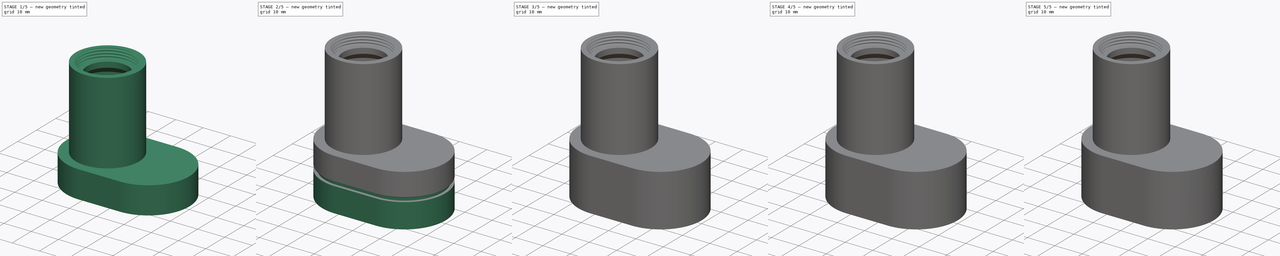
[diagram: build sequence overview — one tinted view per stage of 5, left to right]
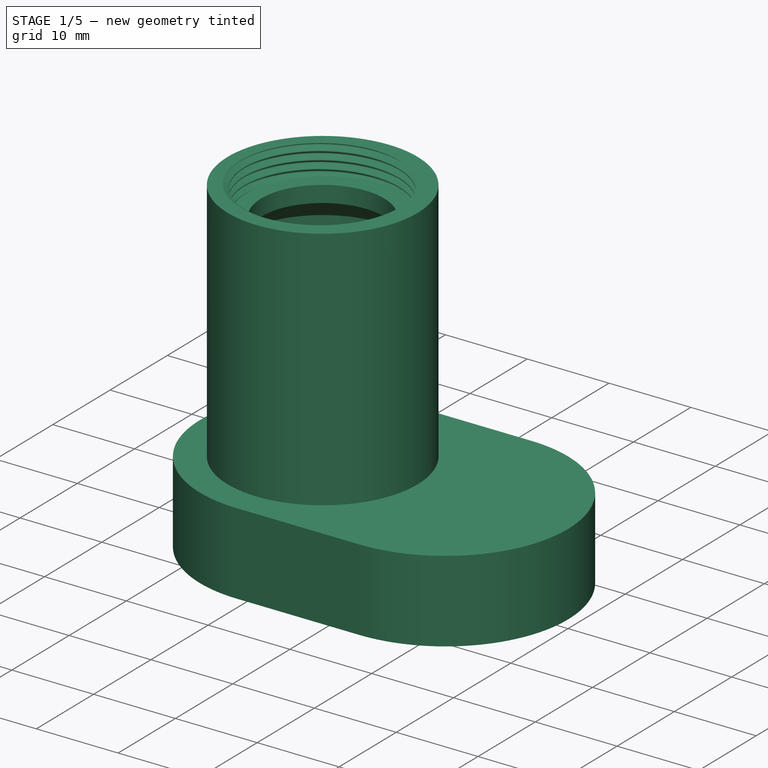
[diagram: stage 1 of 5 — iso view after this stage's code; geometry added in this stage tinted green]
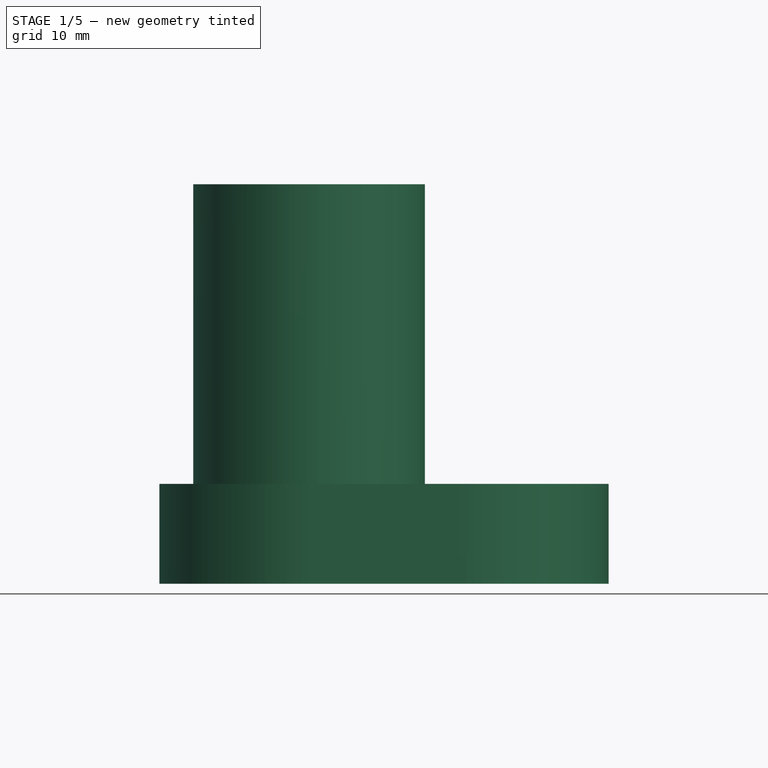
[diagram: stage 1 of 5 — front view after this stage's code; geometry added in this stage tinted green]
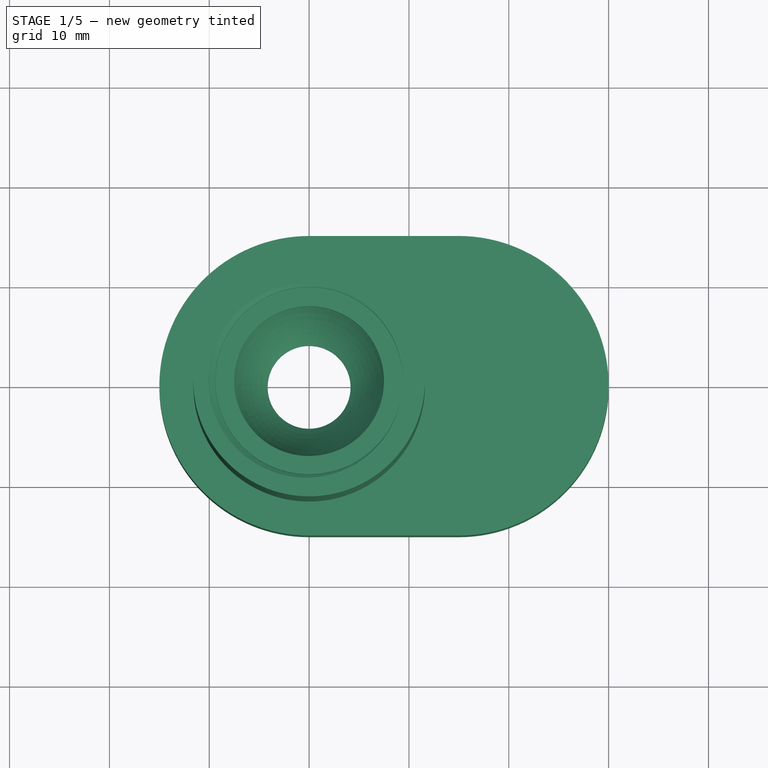
[diagram: stage 1 of 5 — top view after this stage's code; geometry added in this stage tinted green]
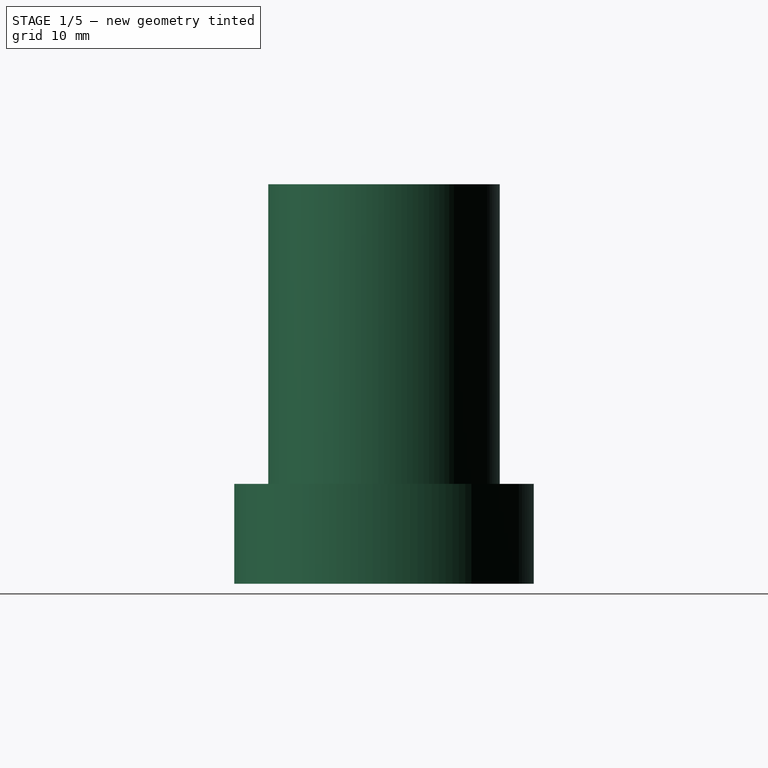
[diagram: stage 1 of 5 — right view after this stage's code; geometry added in this stage tinted green]
FCSTD DOCUMENT  (FreeCAD 1.0R39319 (Git))
Label: tubelight
License: All rights reserved
LicenseURL: https://en.wikipedia.org/wiki/All_rights_reserved
objects: Sketcher::SketchObject×18, PartDesign::Pocket×6, PartDesign::Pad×4, PartDesign::Revolution×3, PartDesign::Body×3, PartDesign::SubtractiveHelix×2, PartDesign::AdditivePipe×1, PartDesign::Groove×1, PartDesign::Mirrored×1, Spreadsheet::Sheet×1, PartDesign::SubtractivePipe×1
note: 95 computed .brp shape members not serialized (recipe doc carries the construction recipe); baked Part::Feature solids carry a one-line shape summary decoded from their .brp

FEATURE [Sketcher::SketchObject] Sketch005  label="gew"
  ArcFitTolerance = 1e-06
  AttachmentSupport = -> [XZ_Plane]
  FullyConstrained = true
  MakeInternals = false
  MapMode = 5
  Placement = pos=(0,0,0) rot=(1,0,0;1.5708rad)
  expr: Constraints[10] = <<tab>>.H_tube
  sketch-geometry (8):
    g0: LineSegment StartX=9.43397 StartY=40.9084 StartZ=0 EndX=10 EndY=40.5816 EndZ=0
    g1: ArcOfCircle CenterX=9.95 CenterY=40.495 CenterZ=0 NormalX=0 NormalY=0 NormalZ=1 AngleXU=0 Radius=0.1 StartAngle=5.23599 EndAngle=7.33038
    g2: LineSegment StartX=10 StartY=40.4084 StartZ=0 EndX=9.43397 EndY=40.0816 EndZ=0
    g3: ArcOfCircle CenterX=9.48397 CenterY=39.995 CenterZ=0 NormalX=0 NormalY=0 NormalZ=1 AngleXU=0 Radius=0.1 StartAngle=2.0944 EndAngle=3.09157
    g4: ArcOfCircle CenterX=9.48397 CenterY=40.995 CenterZ=0 NormalX=0 NormalY=0 NormalZ=1 AngleXU=0 Radius=0.1 StartAngle=3.19161 EndAngle=4.18879
    g5: LineSegment StartX=9.3841 StartY=40 StartZ=0 EndX=9.3841 EndY=40.99 EndZ=0
    g6: GeomPoint X=10.05 Y=40.495 Z=0
    g7: GeomPoint X=9.3841 Y=40.495 Z=0
  constraints (21):
    c: Tangent(g0,g1) = 1.5708
    c: Tangent(g1,g2) = 1.5708
    c: Radius(g1) = 0.1
    c: Equal(g0,g2)
    c: Equal(g4,g3)
    c: Equal(g3,g1)
    c: Tangent(g0,g4) = -1.5708
    c: Tangent(g2,g3) = -1.5708
    c: Angle(g0,g2) = 1.0472
    c: DistanceY(g5,g5) = 0.99
    c: DistanceY(g3) = 40
    c: PointOnObject(g6,g1)
    c: Horizontal(g6,g1)
    c: DistanceX(g6) = 10.05
    c: DistanceX(g4) = 9.3841
    c: Coincident(g4,g5)
    c: Coincident(g3,g5)
    c: Vertical(g5)
    c: DistanceY(g3,g4) = 1
    c: Symmetric(g5,g5,g7)
    c: Horizontal(g7,g1)
FEATURE [Sketcher::SketchObject] Sketch006  label="fill"
  ArcFitTolerance = 1e-06
  AttachmentSupport = -> [XZ_Plane]
  FullyConstrained = true
  MakeInternals = false
  MapMode = 5
  Placement = pos=(0,0,0) rot=(1,0,0;1.5708rad)
  expr: Constraints[8] = <<tab>>.H_tube - 3.5
  sketch-geometry (4):
    g0: LineSegment StartX=7.5 StartY=36.5 StartZ=0 EndX=10.5 EndY=36.5 EndZ=0
    g1: LineSegment StartX=10.5 StartY=36.5 StartZ=0 EndX=10.5 EndY=31.5 EndZ=0
    g2: LineSegment StartX=10.5 StartY=31.5 StartZ=0 EndX=7.5 EndY=34.5 EndZ=0
    g3: LineSegment StartX=7.5 StartY=34.5 StartZ=0 EndX=7.5 EndY=36.5 EndZ=0
  constraints (12):
    c: Horizontal(g0)
    c: Coincident(g0,g1)
    c: Vertical(g1)
    c: Coincident(g1,g2)
    c: Coincident(g2,g3)
    c: Coincident(g3,g0)
    c: Vertical(g3)
    c: DistanceX(g0) = 7.5
    c: DistanceY(g0) = 36.5
    c: DistanceY(g3,g3) = 2
    c: DistanceX(g0) = 10.5
    c: Angle(g2,g0) = 0.785398
FEATURE [PartDesign::Revolution] Revolution  label="Tube-b"
  Angle = 360
  Angle2 = 60
  Axis = (0,2e-16,1)
  Base = (0,0,0)
  Placement = pos=(0,0,0) rot=(1,0,0;1.5708rad)
  Profile = -> Sketch
  ReferenceAxis = -> Sketch [V_Axis]
  Refine = true
  Reversed = true
  Suppressed = false
  Type = 0
FEATURE [PartDesign::SubtractiveHelix] SubtractiveHelix001
  Angle = 0
  Axis = (0,2e-16,1)
  Base = (0,0,0)
  BaseFeature = -> Revolution
  Growth = 0
  HasBeenEdited = true
  Height = 4.5
  LeftHanded = false
  Mode = 0
  Outside = false
  Pitch = 1
  Placement = pos=(0,0,0) rot=(1,0,0;1.5708rad)
  Profile = -> Sketch005
  ReferenceAxis = -> Sketch005 [V_Axis]
  Refine = true
  Reversed = true
  Suppressed = false
  Tolerance = 0.1
  Turns = 4.5
FEATURE [PartDesign::Revolution] Revolution002  label="gew-fill"
  Angle = 360
  Angle2 = 60
  Axis = (0,2e-16,1)
  Base = (0,0,0)
  BaseFeature = -> SubtractiveHelix001
  Placement = pos=(0,0,0) rot=(1,0,0;1.5708rad)
  Profile = -> Sketch006
  ReferenceAxis = -> Sketch006 [V_Axis]
  Refine = true
  Reversed = true
  Suppressed = false
  Type = 0
FEATURE [PartDesign::Body] Body001  label="Deckel"
  AllowCompound = false
  Group = -> [Sketch001,Pad,Sketch008,Sketch009,Pocket,Pocket003,Sketch010,AdditivePipe,Sketch011,Sketch012,Pad001,Groove,Mirrored,Sketch014,Pad002,Sketch015,Sketch016,Pocket004,Pocket005]
  Origin = -> Origin001
  Placement = pos=(0,0,-7.5) rot=(0,0,1;0rad)
  Tip = -> Pocket005
FEATURE [Sketcher::SketchObject] Sketch017  label="plat"
  ArcFitTolerance = 1e-06
  AttachmentSupport = -> [XY_Plane]
  FullyConstrained = true
  MakeInternals = false
  MapMode = 5
  sketch-geometry (5):
    g0: ArcOfCircle CenterX=0 CenterY=0 CenterZ=0 NormalX=0 NormalY=0 NormalZ=1 AngleXU=0 Radius=15 StartAngle=1.5708 EndAngle=4.71239
    g1: LineSegment StartX=-2.4e-15 StartY=15 StartZ=0 EndX=15 EndY=15 EndZ=0
    g2: ArcOfCircle CenterX=15 CenterY=0 CenterZ=0 NormalX=0 NormalY=0 NormalZ=1 AngleXU=0 Radius=15 StartAngle=4.71239 EndAngle=7.85398
    g3: LineSegment StartX=15 StartY=-15 StartZ=0 EndX=-3.6e-15 EndY=-15 EndZ=0
    g4: Circle CenterX=0 CenterY=0 CenterZ=0 NormalX=0 NormalY=0 NormalZ=1 AngleXU=0 Radius=11.6
  constraints (11):
    c: Tangent(g1,g2) = 1.5708
    c: Tangent(g0,g3) = 1.5708
    c: Tangent(g0,g1) = 1.5708
    c: Tangent(g2,g3) = 1.5708
    c: Equal(g2,g0)
    c: Radius(g0) = 15
    c: Coincident(g0,g-1)
    c: PointOnObject(g2,g-1)
    c: DistanceX(g1,g1) = 15
    c: Coincident(g4,g0)
    c: Diameter(g4) = 23.2
FEATURE [PartDesign::Pad] Pad003  label="platte"
  BaseFeature = -> Revolution002
  Direction = (0,0,1)
  Length = 10
  Length2 = 10
  Placement = pos=(0,0,0) rot=(1,0,0;1.5708rad)
  Profile = -> Sketch017
  ReferenceAxis = -> Sketch017 [N_Axis]
  Refine = true
  Suppressed = false
  Type = 0
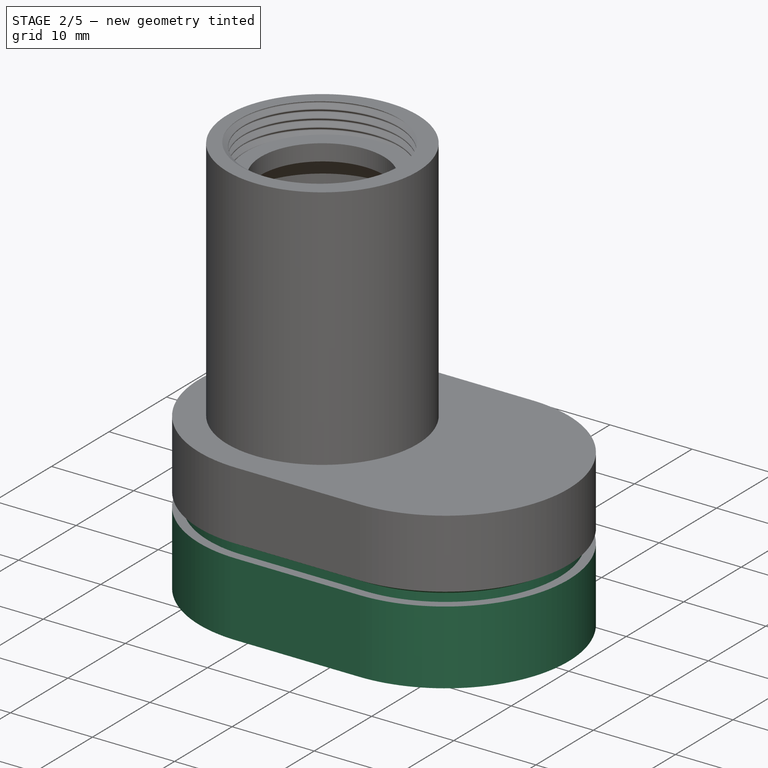
[diagram: stage 2 of 5 — iso view after this stage's code; geometry added in this stage tinted green]
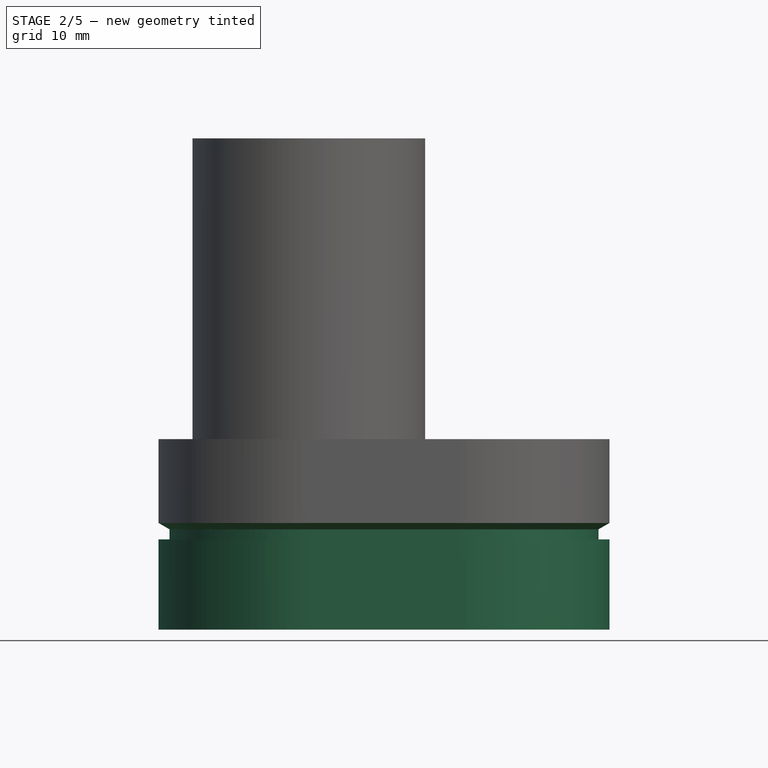
[diagram: stage 2 of 5 — front view after this stage's code; geometry added in this stage tinted green]
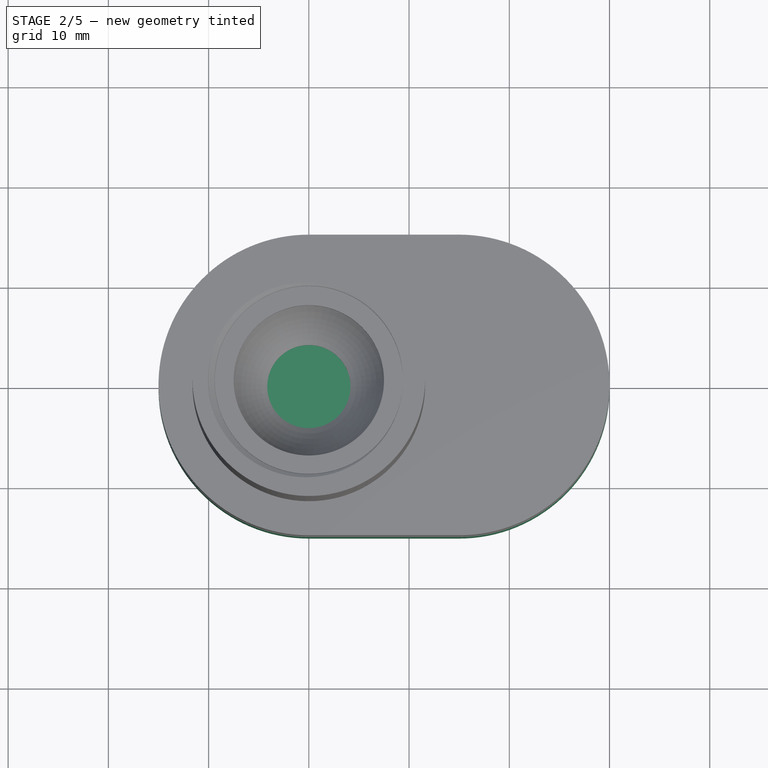
[diagram: stage 2 of 5 — top view after this stage's code; geometry added in this stage tinted green]
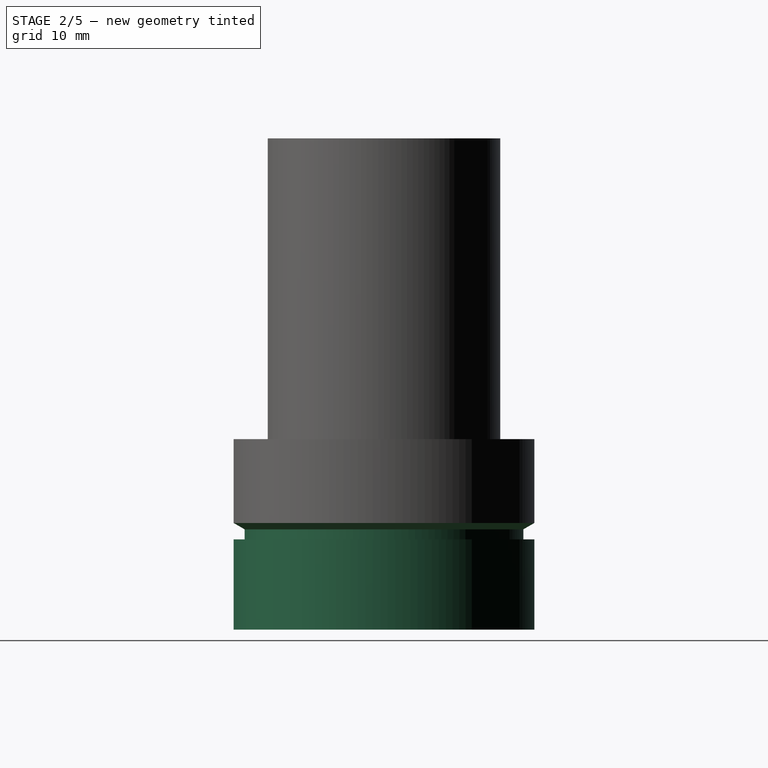
[diagram: stage 2 of 5 — right view after this stage's code; geometry added in this stage tinted green]
FEATURE [Sketcher::SketchObject] Sketch  label="tube"
  ArcFitTolerance = 1e-06
  AttachmentSupport = -> [XZ_Plane]
  FullyConstrained = false
  MakeInternals = false
  MapMode = 5
  Placement = pos=(0,0,0) rot=(1,0,0;1.5708rad)
  expr: Constraints[20] = 8.3 / 2
  expr: Constraints[37] = <<tab>>.H_tube
  expr: Constraints[4] = 23.2 / 2
  sketch-geometry (15):
    g0: LineSegment StartX=11.6 StartY=0 StartZ=0 EndX=4.15 EndY=0 EndZ=0
    g1: LineSegment StartX=4.15 StartY=0 StartZ=0 EndX=4.15 EndY=1 EndZ=0
    g2: LineSegment StartX=11.6 StartY=0 StartZ=0 EndX=11.6 EndY=40 EndZ=0
    g3: LineSegment StartX=11.6 StartY=40 StartZ=0 EndX=9.3841 EndY=40 EndZ=0
    g4: LineSegment StartX=9.3841 StartY=40 StartZ=0 EndX=9.3841 EndY=35 EndZ=0
    g5: LineSegment StartX=9.3841 StartY=35 StartZ=0 EndX=10 EndY=34.3841 EndZ=0
    g6: LineSegment StartX=10 StartY=34.3841 StartZ=0 EndX=10 EndY=18 EndZ=0
    g7: ArcOfCircle [constr] CenterX=0 CenterY=15.6253 CenterZ=0 NormalX=0 NormalY=0 NormalZ=1 AngleXU=0 Radius=15.1636 StartAngle=1.01116 EndAngle=1.5708
    g8: LineSegment [constr] StartX=8.05 StartY=28.4757 StartZ=0 EndX=8.05 EndY=27.4757 EndZ=0
    g9: LineSegment [constr] StartX=8.05 StartY=27.4757 StartZ=0 EndX=0 EndY=27.4757 EndZ=0
    g10: ArcOfEllipse CenterX=0 CenterY=18 CenterZ=0 NormalX=0 NormalY=0 NormalZ=1 MajorRadius=18.685 MinorRadius=10 AngleXU=-1.5708 StartAngle=0.427943 EndAngle=1.5708
    g11: LineSegment [constr] StartX=0 StartY=-0.684986 StartZ=0 EndX=0 EndY=36.685 EndZ=0
    g12: LineSegment [constr] StartX=10 StartY=18 StartZ=0 EndX=-10 EndY=18 EndZ=0
    g13: GeomPoint [constr] X=0 Y=2.21619 Z=0
    g14: GeomPoint [constr] X=0 Y=33.7838 Z=0
  constraints (36):
    c: Horizontal(g0)
    c: Coincident(g0,g1)
    c: Vertical(g1)
    c: Vertical(g2)
    c: DistanceX(g2) = 11.6
    c: Coincident(g2,g3)
    c: Horizontal(g3)
    c: Vertical(g4)
    c: Coincident(g5,g6)
    c: Vertical(g6)
    c: DistanceY(g4,g4) = 5
    c: PointOnObject(g7,g-2)
    c: Coincident(g7,g8)
    c: Vertical(g8)
    c: Coincident(g8,g9)
    c: PointOnObject(g9,g-2)
    c: Horizontal(g9)
    c: PointOnObject(g7,g-2)
    c: DistanceY(g8,g8) = 1
    c: DistanceX(g7) = 8.05
    c: DistanceX(g0) = 4.15
    c: Coincident(g3,g4)
    c: DistanceX(g3) = 9.3841
    c: Angle(g5) = -0.785398
    c: DistanceX(g5) = 10
    c: Coincident(g4,g5)
    c: DistanceY(g1,g1) = 1
    c: InternalAlignment(g11-g14 -> g10) x4
    c: Tangent(g6,g10) = 1.5708
    c: Vertical(g13,g14)
    c: Coincident(g1,g10)
    c: PointOnObject(g10,g-2)
    c: Coincident(g0,g2)
    c: DistanceY(g0,g10) = 18
    c: DistanceY(g2,g2) = 40
    c: PointOnObject(g0,g-1)
FEATURE [Sketcher::SketchObject] Sketch001  label="deck"
  ArcFitTolerance = 1e-06
  AttachmentSupport = -> [XY_Plane001]
  FullyConstrained = true
  MakeInternals = false
  MapMode = 5
  sketch-geometry (4):
    g0: ArcOfCircle CenterX=0 CenterY=0 CenterZ=0 NormalX=0 NormalY=0 NormalZ=1 AngleXU=0 Radius=15 StartAngle=1.5708 EndAngle=4.71239
    g1: LineSegment StartX=-2.4e-15 StartY=15 StartZ=0 EndX=15 EndY=15 EndZ=0
    g2: ArcOfCircle CenterX=15 CenterY=0 CenterZ=0 NormalX=0 NormalY=0 NormalZ=1 AngleXU=0 Radius=15 StartAngle=4.71239 EndAngle=7.85398
    g3: LineSegment StartX=15 StartY=-15 StartZ=0 EndX=-7.1e-15 EndY=-15 EndZ=0
  constraints (9):
    c: Tangent(g1,g2) = 1.5708
    c: Tangent(g0,g3) = 1.5708
    c: Tangent(g0,g1) = 1.5708
    c: Tangent(g2,g3) = 1.5708
    c: Equal(g2,g0)
    c: Radius(g0) = 15
    c: Coincident(g0,g-1)
    c: PointOnObject(g2,g-1)
    c: DistanceX(g1,g1) = 15
FEATURE [PartDesign::Pad] Pad  label="decel"
  Direction = (0,0,1)
  Length = 9
  Length2 = 10
  Profile = -> Sketch001
  ReferenceAxis = -> Sketch001 [N_Axis]
  Refine = true
  Reversed = true
  Suppressed = false
  Type = 0
FEATURE [PartDesign::Body] Body002  label="gew-ring"
  AllowCompound = false
  Group = -> [Sketch003,Sketch004,Revolution001,SubtractiveHelix,Sketch007,Pocket002]
  Origin = -> Origin002
  Placement = pos=(0,50,0) rot=(0,0,1;0rad)
  Tip = -> Pocket002
FEATURE [Sketcher::SketchObject] Sketch008  label="pot-lo"
  ArcFitTolerance = 1e-06
  AttachmentSupport = -> [XY_Plane001]
  FullyConstrained = true
  MakeInternals = false
  MapMode = 5
  sketch-geometry (1):
    g0: Circle CenterX=0 CenterY=0 CenterZ=0 NormalX=0 NormalY=0 NormalZ=1 AngleXU=0 Radius=5.1
  constraints (2):
    c: Coincident(g0,g-1)
    c: Diameter(g0) = 10.2
FEATURE [Sketcher::SketchObject] Sketch009  label="pot"
  ArcFitTolerance = 1e-06
  AttachmentSupport = -> [XY_Plane001]
  FullyConstrained = true
  MakeInternals = false
  MapMode = 5
  sketch-geometry (4):
    g0: LineSegment StartX=-8.1 StartY=8.1 StartZ=0 EndX=-8.1 EndY=-8.1 EndZ=0
    g1: LineSegment StartX=-8.1 StartY=-8.1 StartZ=0 EndX=8.1 EndY=-8.1 EndZ=0
    g2: LineSegment StartX=8.1 StartY=-8.1 StartZ=0 EndX=8.1 EndY=8.1 EndZ=0
    g3: LineSegment StartX=8.1 StartY=8.1 StartZ=0 EndX=-8.1 EndY=8.1 EndZ=0
  constraints (11):
    c: Coincident(g0,g1)
    c: Coincident(g1,g2)
    c: Coincident(g2,g3)
    c: Coincident(g3,g0)
    c: Vertical(g0)
    c: Vertical(g2)
    c: Horizontal(g1)
    c: Horizontal(g3)
    c: Equal(g2,g3)
    c: DistanceX(g3,g3) = 16.2
    c: Symmetric(g1,g0,g-1)
FEATURE [PartDesign::Pocket] Pocket  label="poti"
  BaseFeature = -> Pad
  Direction = (0,0,-1)
  Length = 3
  Length2 = 5
  Profile = -> Sketch009
  ReferenceAxis = -> Sketch009 [N_Axis]
  Refine = true
  Suppressed = false
  Type = 0
FEATURE [Spreadsheet::Sheet] Spreadsheet  label="tab"
  cells = A1='H_rand; B1(H_rand)=7.5; A2='H_led; B2(H_led)=2; A3='H_poti; B3(H_poti)=8.5; A4='H_tube; B4(H_tube)=40
FEATURE [Sketcher::SketchObject] Sketch018  label="paass"
  ArcFitTolerance = 1e-06
  AttachmentSupport = -> [YZ_Plane]
  FullyConstrained = true
  MakeInternals = false
  MapMode = 5
  Placement = pos=(0,0,0) rot=(0.57735,0.57735,0.57735;2.0944rad)
  sketch-geometry (4):
    g0: LineSegment StartX=13.9 StartY=0 StartZ=0 EndX=13.9 EndY=1 EndZ=0
    g1: LineSegment StartX=13.9 StartY=1 StartZ=0 EndX=15 EndY=1.63509 EndZ=0
    g2: LineSegment StartX=15 StartY=1.63509 StartZ=0 EndX=15 EndY=0 EndZ=0
    g3: LineSegment StartX=15 StartY=0 StartZ=0 EndX=13.9 EndY=0 EndZ=0
  constraints (12):
    c: PointOnObject(g0,g-1)
    c: Vertical(g0)
    c: Coincident(g0,g1)
    c: Coincident(g1,g2)
    c: PointOnObject(g2,g-1)
    c: Vertical(g2)
    c: Coincident(g2,g3)
    c: Coincident(g3,g0)
    c: Angle(g3,g1) = 0.523599
    c: DistanceY(g0,g0) = 1
    c: DistanceX(g2) = 15
    c: DistanceX(g3,g3) = 1.1
FEATURE [PartDesign::SubtractivePipe] SubtractivePipe  label="Passung"
  AuxilleryCurvelinear = true
  AuxillerySpineTangent = false
  BaseFeature = -> Pad003
  Binormal = (0,0,0)
  Mode = 0
  Placement = pos=(0,0,0) rot=(1,0,0;1.5708rad)
  Profile = -> Sketch018
  Refine = true
  Spine = -> Pad003 [Edge82,Edge81,Edge79,Edge77]
  SpineTangent = false
  Suppressed = false
  Transformation = 0
  Transition = 0
FEATURE [Sketcher::SketchObject] Sketch019  label="s-gew"
  ArcFitTolerance = 1e-06
  AttacherType = Attacher::AttachEngine3D
  AttachmentSupport = -> [XY_Plane]
  FullyConstrained = true
  MakeInternals = false
  MapMode = 5
  sketch-geometry (2):
    g0: Circle CenterX=7.5 CenterY=10.75 CenterZ=0 NormalX=0 NormalY=0 NormalZ=1 AngleXU=0 Radius=1.4
    g1: Circle CenterX=7.5 CenterY=-10.75 CenterZ=0 NormalX=0 NormalY=0 NormalZ=1 AngleXU=0 Radius=1.4
  constraints (5):
    c: Diameter(g0) = 2.8
    c: DistanceX(g0) = 7.5
    c: DistanceY(g0) = 10.75
    c: Equal(g1,g0)
    c: Symmetric(g1,g0,g-1)
FEATURE [PartDesign::Pocket] Pocket006  label="s-gewinde"
  BaseFeature = -> SubtractivePipe
  Direction = (0,0,-1)
  Length = 9
  Length2 = 5
  Placement = pos=(0,0,0) rot=(1,0,0;1.5708rad)
  Profile = -> Sketch019
  ReferenceAxis = -> Sketch019 [N_Axis]
  Refine = true
  Reversed = true
  Suppressed = false
  Type = 0
FEATURE [PartDesign::Body] Body  label="Tube"
  AllowCompound = false
  Group = -> [Sketch,Sketch005,Revolution,Sketch006,SubtractiveHelix001,Revolution002,Sketch017,Pad003,Sketch018,SubtractivePipe,Sketch019,Pocket006]
  Origin = -> Origin
  Tip = -> Pocket006
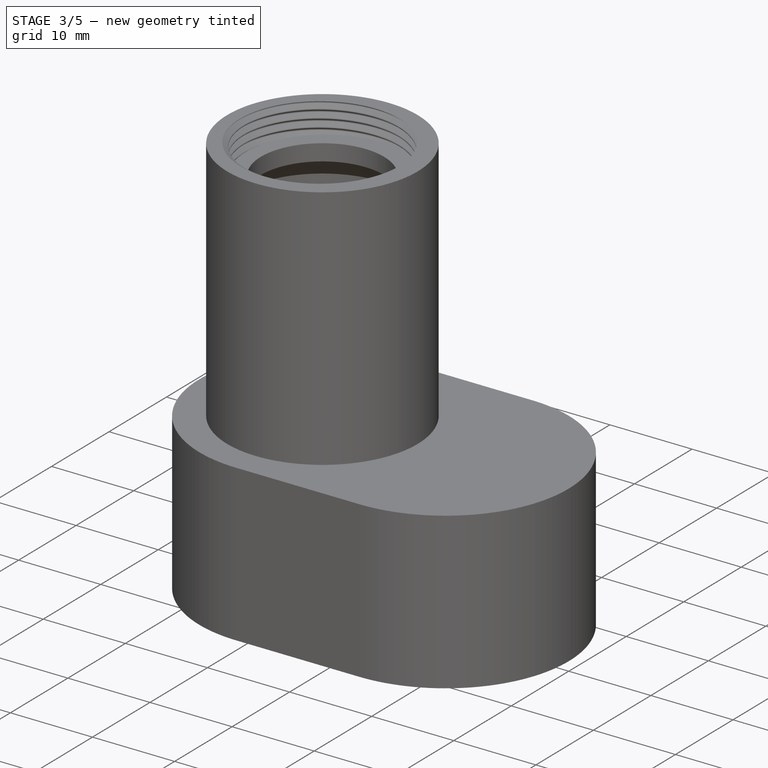
[diagram: stage 3 of 5 — iso view after this stage's code; geometry added in this stage tinted green]
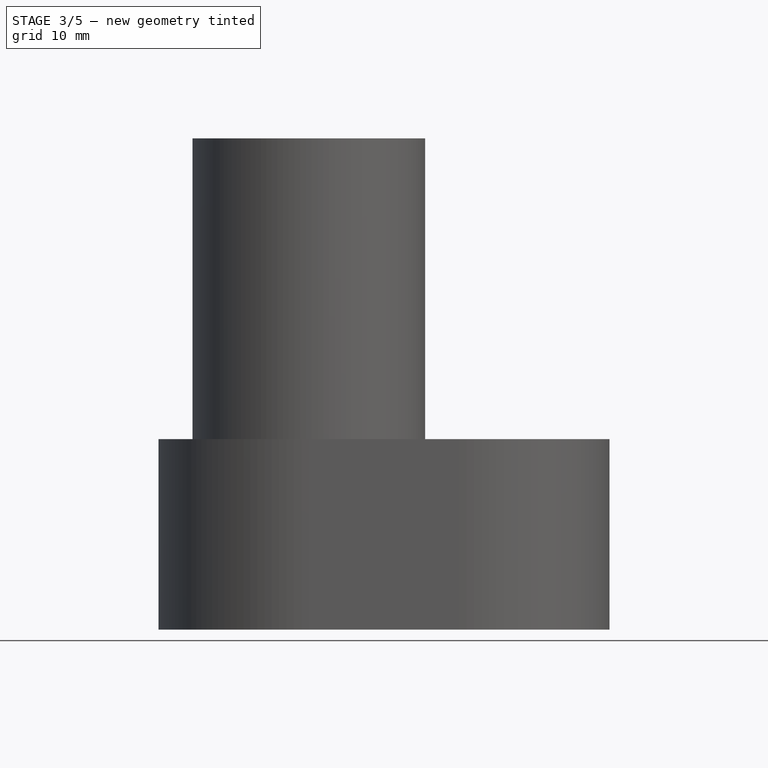
[diagram: stage 3 of 5 — front view after this stage's code; geometry added in this stage tinted green]
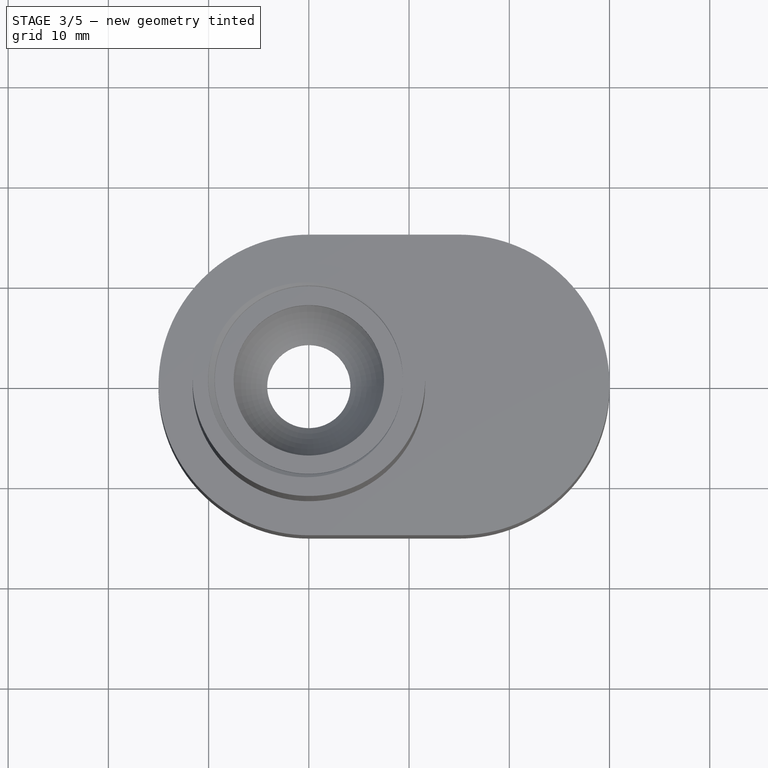
[diagram: stage 3 of 5 — top view after this stage's code; geometry added in this stage tinted green]
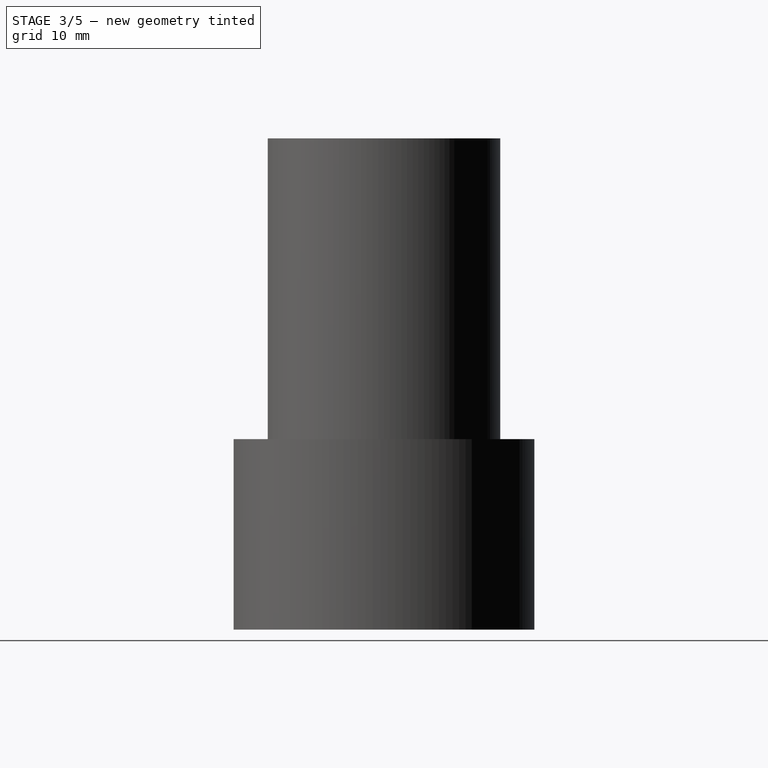
[diagram: stage 3 of 5 — right view after this stage's code; geometry added in this stage tinted green]
FEATURE [PartDesign::Pocket] Pocket003  label="poti-loch"
  BaseFeature = -> Pocket
  Direction = (0,0,-1)
  Length = 5
  Length2 = 5
  Profile = -> Sketch008
  ReferenceAxis = -> Sketch008 [N_Axis]
  Refine = true
  Suppressed = false
  Type = 1
FEATURE [Sketcher::SketchObject] Sketch010  label="schrau"
  ArcFitTolerance = 1e-06
  AttachmentOffset = pos=(0,0,7.5) rot=(0,0,1;0rad)
  AttachmentSupport = -> [YZ_Plane001]
  FullyConstrained = true
  MakeInternals = false
  MapMode = 5
  Placement = pos=(7.5,0,0) rot=(0.57735,0.57735,0.57735;2.0944rad)
  expr: .AttachmentOffset.Base.z = 15 / 2
  expr: Constraints[14] = 3.5 / 2
  expr: Constraints[17] = <<tab>>.H_rand
  sketch-geometry (6):
    g0: LineSegment StartX=10.75 StartY=7.5 StartZ=0 EndX=10.75 EndY=-9 EndZ=0
    g1: LineSegment StartX=10.75 StartY=-9 StartZ=0 EndX=14 EndY=-9 EndZ=0
    g2: LineSegment StartX=14 StartY=-9 StartZ=0 EndX=14 EndY=-8.5 EndZ=0
    g3: LineSegment StartX=14 StartY=-8.5 StartZ=0 EndX=12.5 EndY=-7 EndZ=0
    g4: LineSegment StartX=12.5 StartY=-7 StartZ=0 EndX=12.5 EndY=7.5 EndZ=0
    g5: LineSegment StartX=12.5 StartY=7.5 StartZ=0 EndX=10.75 EndY=7.5 EndZ=0
  constraints (19):
    c: Vertical(g0)
    c: Coincident(g0,g1)
    c: Horizontal(g1)
    c: Coincident(g1,g2)
    c: Vertical(g2)
    c: Coincident(g2,g3)
    c: Coincident(g3,g4)
    c: Vertical(g4)
    c: Coincident(g4,g5)
    c: Coincident(g5,g0)
    c: Horizontal(g5)
    c: DistanceY(g0) = -9
    c: DistanceY(g2,g2) = 0.5
    c: DistanceX(g1,g1) = 3.25
    c: DistanceX(g5,g5) = 1.75
    c: Angle(g3,g1) = 0.785398
    c: DistanceX(g1) = 14
    c: DistanceY(g0) = 7.5
    c: DistanceX(g0) = 10.75
FEATURE [Sketcher::SketchObject] Sketch011  label="ran"
  ArcFitTolerance = 1e-06
  AttachmentSupport = -> [YZ_Plane001]
  FullyConstrained = true
  MakeInternals = false
  MapMode = 5
  Placement = pos=(0,0,0) rot=(0.57735,0.57735,0.57735;2.0944rad)
  expr: Constraints[17] = <<tab>>.H_rand
  sketch-geometry (6):
    g0: LineSegment StartX=15 StartY=0 StartZ=0 EndX=15 EndY=8.5 EndZ=0
    g1: LineSegment StartX=15 StartY=8.5 StartZ=0 EndX=14 EndY=8.5 EndZ=0
    g2: LineSegment StartX=14 StartY=8.5 StartZ=0 EndX=14 EndY=7.5 EndZ=0
    g3: LineSegment StartX=14 StartY=7.5 StartZ=0 EndX=13 EndY=7.5 EndZ=0
    g4: LineSegment StartX=13 StartY=7.5 StartZ=0 EndX=13 EndY=0 EndZ=0
    g5: LineSegment StartX=13 StartY=0 StartZ=0 EndX=15 EndY=0 EndZ=0
  constraints (18):
    c: PointOnObject(g0,g-1)
    c: Vertical(g0)
    c: Coincident(g0,g1)
    c: Horizontal(g1)
    c: Coincident(g1,g2)
    c: Vertical(g2)
    c: Coincident(g2,g3)
    c: Horizontal(g3)
    c: Coincident(g3,g4)
    c: PointOnObject(g4,g-1)
    c: Vertical(g4)
    c: Coincident(g4,g5)
    c: Coincident(g5,g0)
    c: DistanceX(g0) = 15
    c: DistanceX(g1,g1) = 1
    c: Equal(g1,g2)
    c: Equal(g1,g3)
    c: DistanceY(g4,g4) = 7.5
FEATURE [PartDesign::AdditivePipe] AdditivePipe  label="rand"
  AuxilleryCurvelinear = true
  AuxillerySpineTangent = false
  BaseFeature = -> Pocket003
  Binormal = (0,0,0)
  Mode = 0
  Profile = -> Sketch011
  Refine = true
  Spine = -> Pocket003 [Edge6,Edge3,Edge9,Edge11]
  SpineTangent = false
  Suppressed = false
  Transformation = 0
  Transition = 0
FEATURE [Sketcher::SketchObject] Sketch012  label="s-mat"
  ArcFitTolerance = 1e-06
  AttachmentSupport = -> [XY_Plane001]
  FullyConstrained = true
  MakeInternals = false
  MapMode = 5
  expr: Constraints[6] = 15 - 1 - 6.5 / 2
  expr: Constraints[8] = 15 / 2
  sketch-geometry (4):
    g0: ArcOfCircle CenterX=7.5 CenterY=10.75 CenterZ=0 NormalX=0 NormalY=0 NormalZ=1 AngleXU=0 Radius=2.5 StartAngle=3.14159 EndAngle=6.28319
    g1: LineSegment StartX=5 StartY=10.75 StartZ=0 EndX=5 EndY=13 EndZ=0
    g2: LineSegment StartX=5 StartY=13 StartZ=0 EndX=10 EndY=13 EndZ=0
    g3: LineSegment StartX=10 StartY=13 StartZ=0 EndX=10 EndY=10.75 EndZ=0
  constraints (11):
    c: Coincident(g1,g2)
    c: Horizontal(g2)
    c: Coincident(g2,g3)
    c: Vertical(g3)
    c: Vertical(g1)
    c: Radius(g0) = 2.5
    c: DistanceY(g0) = 10.75
    c: DistanceY(g3,g3) = 2.25
    c: DistanceX(g0) = 7.5
    c: Tangent(g0,g3) = 1.5708
    c: Tangent(g0,g1) = 1.5708
FEATURE [PartDesign::Pad] Pad001  label="s-matter"
  BaseFeature = -> AdditivePipe
  Direction = (0,0,1)
  Length = 7.5
  Length2 = 10
  Profile = -> Sketch012
  ReferenceAxis = -> Sketch012 [N_Axis]
  Refine = true
  Suppressed = false
  Type = 0
  expr: Length = <<tab>>.H_rand
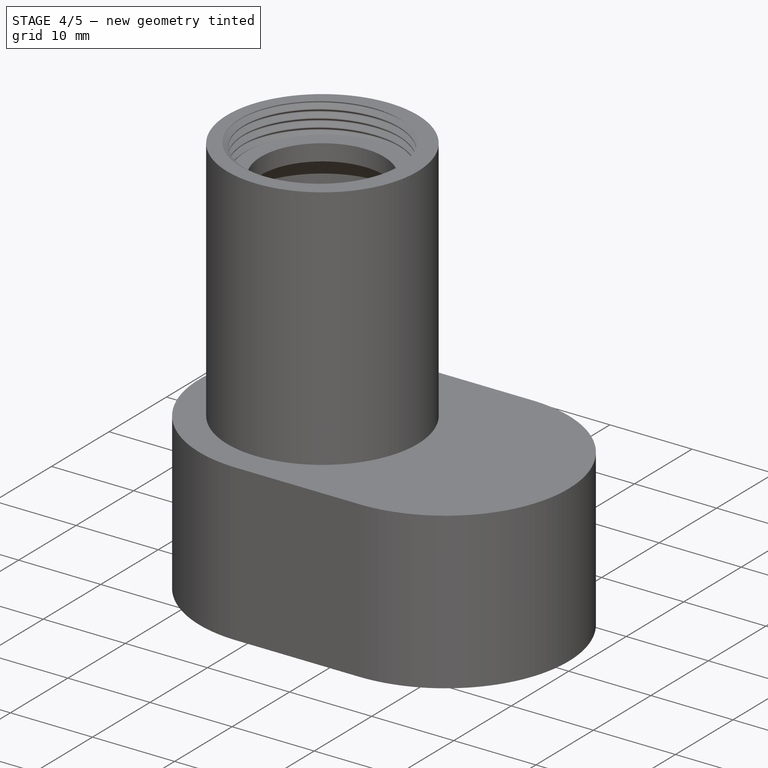
[diagram: stage 4 of 5 — iso view after this stage's code; geometry added in this stage tinted green]
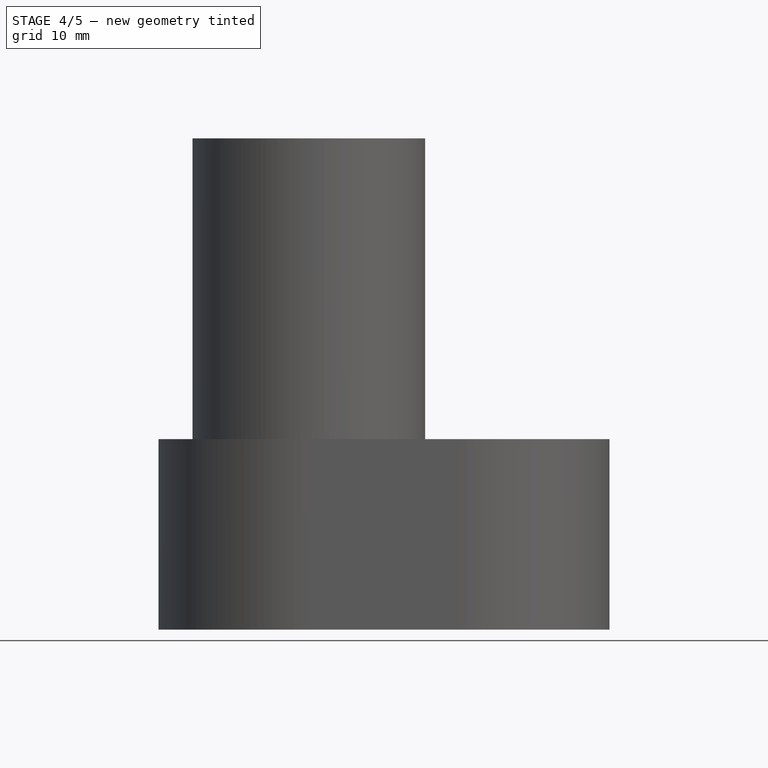
[diagram: stage 4 of 5 — front view after this stage's code; geometry added in this stage tinted green]
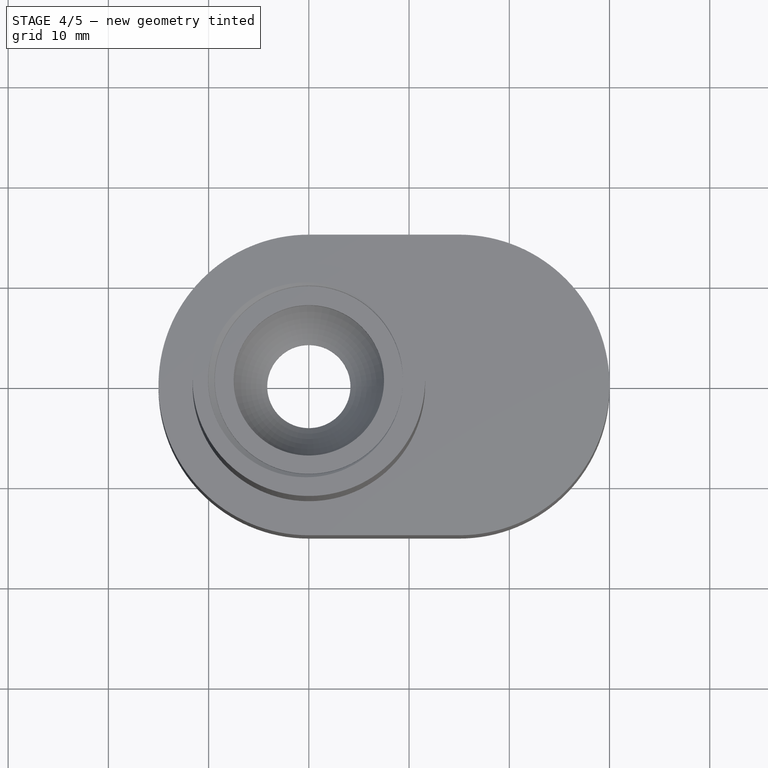
[diagram: stage 4 of 5 — top view after this stage's code; geometry added in this stage tinted green]
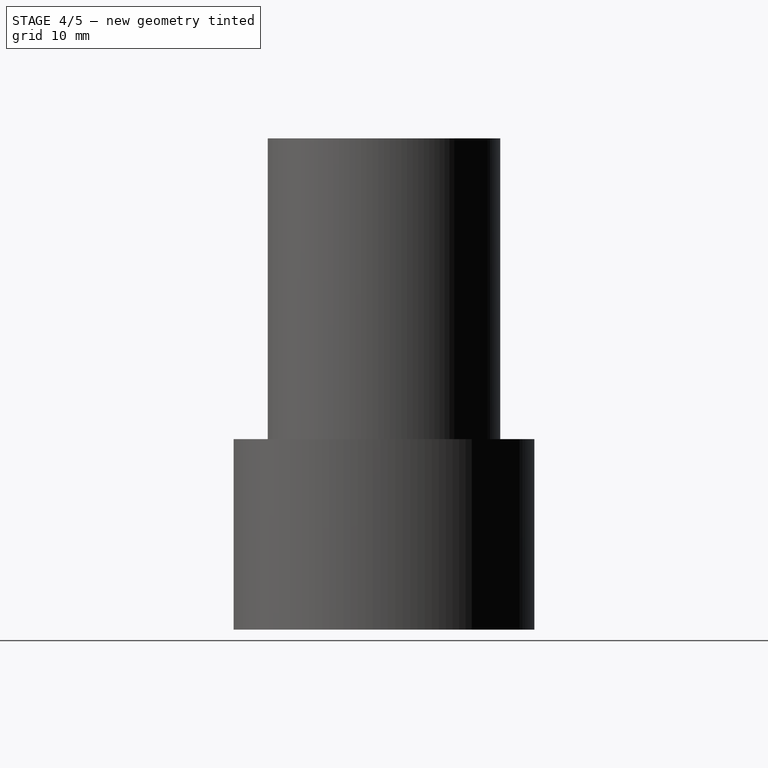
[diagram: stage 4 of 5 — right view after this stage's code; geometry added in this stage tinted green]
FEATURE [PartDesign::Groove] Groove  label="schraube"
  Angle = 360
  Angle2 = 60
  Axis = (0,0,-1)
  Base = (7.5,10.75,7.5)
  BaseFeature = -> Pad001
  Midplane = true
  Profile = -> Sketch010
  ReferenceAxis = -> Sketch010 [Edge1]
  Refine = true
  Reversed = true
  Suppressed = false
  Type = 0
FEATURE [PartDesign::Mirrored] Mirrored
  BaseFeature = -> Groove
  MirrorPlane = -> Sketch010 [V_Axis]
  Originals = -> [Pad001,Groove]
  Refine = true
  Suppressed = false
  TransformMode = 0
FEATURE [Sketcher::SketchObject] Sketch014
  ArcFitTolerance = 1e-06
  AttachmentSupport = -> [XY_Plane001]
  FullyConstrained = true
  MakeInternals = false
  MapMode = 5
  sketch-geometry (2):
    g0: ArcOfCircle CenterX=15 CenterY=0 CenterZ=0 NormalX=0 NormalY=0 NormalZ=1 AngleXU=0 Radius=13 StartAngle=5.37526 EndAngle=7.19111
    g1: LineSegment StartX=23 StartY=10.247 StartZ=0 EndX=23 EndY=-10.247 EndZ=0
  constraints (7):
    c: PointOnObject(g0,g-1)
    c: Coincident(g0,g1)
    c: Vertical(g1)
    c: Radius(g0) = 13
    c: DistanceX(g0) = 15
    c: Coincident(g0,g1)
    c: DistanceX(g0,g0) = 8
FEATURE [PartDesign::Pad] Pad002  label="kabel-mat"
  BaseFeature = -> Mirrored
  Direction = (0,0,1)
  Length = 7.5
  Length2 = 10
  Profile = -> Sketch014
  ReferenceAxis = -> Sketch014 [N_Axis]
  Refine = true
  Suppressed = false
  Type = 0
  expr: Length = <<tab>>.H_rand
FEATURE [Sketcher::SketchObject] Sketch015  label="kab"
  ArcFitTolerance = 1e-06
  AttachmentOffset = pos=(0,0,24) rot=(0,0,1;0rad)
  AttachmentSupport = -> [YZ_Plane001]
  FullyConstrained = true
  MakeInternals = false
  MapMode = 5
  Placement = pos=(24,0,0) rot=(0.57735,0.57735,0.57735;2.0944rad)
  expr: .AttachmentOffset.Base.z = 15 + 9
  expr: Constraints[8] = <<tab>>.H_rand - 2.5 / 2
  sketch-geometry (4):
    g0: ArcOfCircle CenterX=0 CenterY=6.25 CenterZ=0 NormalX=0 NormalY=0 NormalZ=1 AngleXU=0 Radius=1.25 StartAngle=3.14159 EndAngle=6.28319
    g1: LineSegment StartX=-1.25 StartY=6.25 StartZ=0 EndX=-1.25 EndY=8.5 EndZ=0
    g2: LineSegment StartX=-1.25 StartY=8.5 StartZ=0 EndX=1.25 EndY=8.5 EndZ=0
    g3: LineSegment StartX=1.25 StartY=8.5 StartZ=0 EndX=1.25 EndY=6.25 EndZ=0
  constraints (11):
    c: PointOnObject(g0,g-2)
    c: Vertical(g1)
    c: Coincident(g1,g2)
    c: Horizontal(g2)
    c: Coincident(g2,g3)
    c: Vertical(g3)
    c: Tangent(g0,g3) = 1.5708
    c: Tangent(g0,g1) = 1.5708
    c: DistanceY(g0) = 6.25
    c: Diameter(g0) = 2.5
    c: DistanceY(g3,g3) = 2.25
FEATURE [Sketcher::SketchObject] Sketch016  label="kab-que"
  ArcFitTolerance = 1e-06
  AttachmentOffset = pos=(0,0,24) rot=(0,0,1;0rad)
  AttachmentSupport = -> [YZ_Plane001]
  FullyConstrained = true
  MakeInternals = false
  MapMode = 5
  Placement = pos=(24,0,0) rot=(0.57735,0.57735,0.57735;2.0944rad)
  expr: .AttachmentOffset.Base.z = 15 + 9
  expr: Constraints[13] = <<tab>>.H_rand - 2.5 / 2
  sketch-geometry (6):
    g0: ArcOfCircle CenterX=0 CenterY=6.25 CenterZ=0 NormalX=0 NormalY=0 NormalZ=1 AngleXU=0 Radius=1.25 StartAngle=3.14159 EndAngle=3.78509
    g1: LineSegment StartX=-1.25 StartY=6.25 StartZ=0 EndX=-1.25 EndY=8.5 EndZ=0
    g2: LineSegment StartX=-1.25 StartY=8.5 StartZ=0 EndX=1.25 EndY=8.5 EndZ=0
    g3: LineSegment StartX=1.25 StartY=8.5 StartZ=0 EndX=1.25 EndY=6.25 EndZ=0
    g4: LineSegment StartX=-1 StartY=5.5 StartZ=0 EndX=1 EndY=5.5 EndZ=0
    g5: ArcOfCircle CenterX=0 CenterY=6.25 CenterZ=0 NormalX=0 NormalY=0 NormalZ=1 AngleXU=0 Radius=1.25 StartAngle=5.63968 EndAngle=6.28319
  constraints (19):
    c: PointOnObject(g0,g-2)
    c: Vertical(g1)
    c: Coincident(g1,g2)
    c: Horizontal(g2)
    c: Coincident(g2,g3)
    c: Vertical(g3)
    c: Coincident(g5,g3) = 1.5708
    c: Tangent(g0,g1) = 1.5708
    c: Diameter(g0) = 2.5
    c: DistanceY(g3,g3) = 2.25
    c: PointOnObject(g4,g5)
    c: Horizontal(g4)
    c: DistanceY(g4,g0) = 0.75
    c: DistanceY(g0) = 6.25
    c: Equal(g0,g5)
    c: Coincident(g0,g4)
    c: PointOnObject(g5,g4)
    c: Coincident(g0,g5)
    c: Horizontal(g3,g0)
FEATURE [PartDesign::Pocket] Pocket004
  BaseFeature = -> Pad002
  Direction = (-1,0,0)
  Length = 5
  Length2 = 5
  Profile = -> Sketch016
  ReferenceAxis = -> Sketch016 [N_Axis]
  Refine = true
  Suppressed = false
  Type = 0
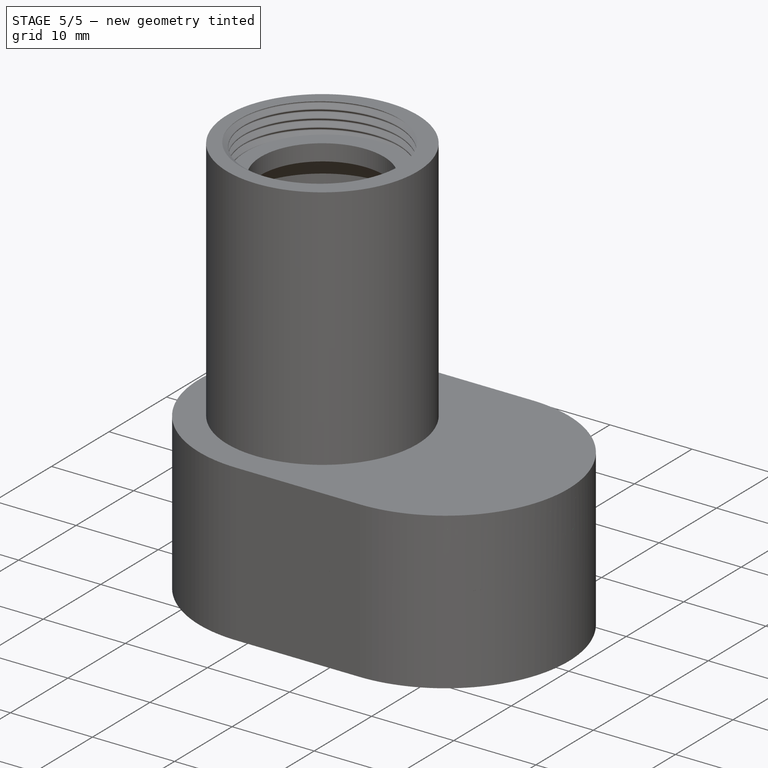
[diagram: stage 5 of 5 — iso view after this stage's code; geometry added in this stage tinted green]
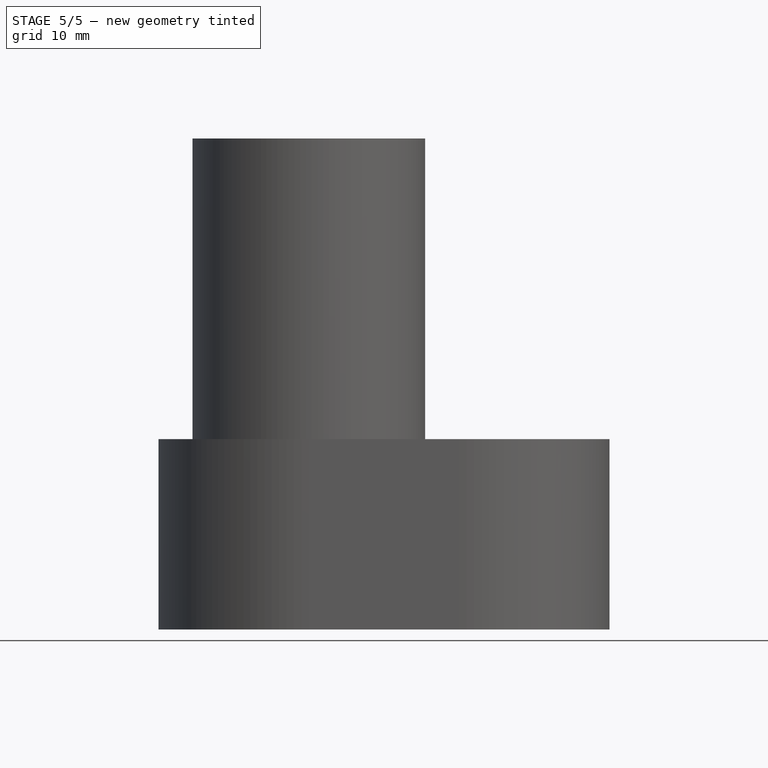
[diagram: stage 5 of 5 — front view after this stage's code; geometry added in this stage tinted green]
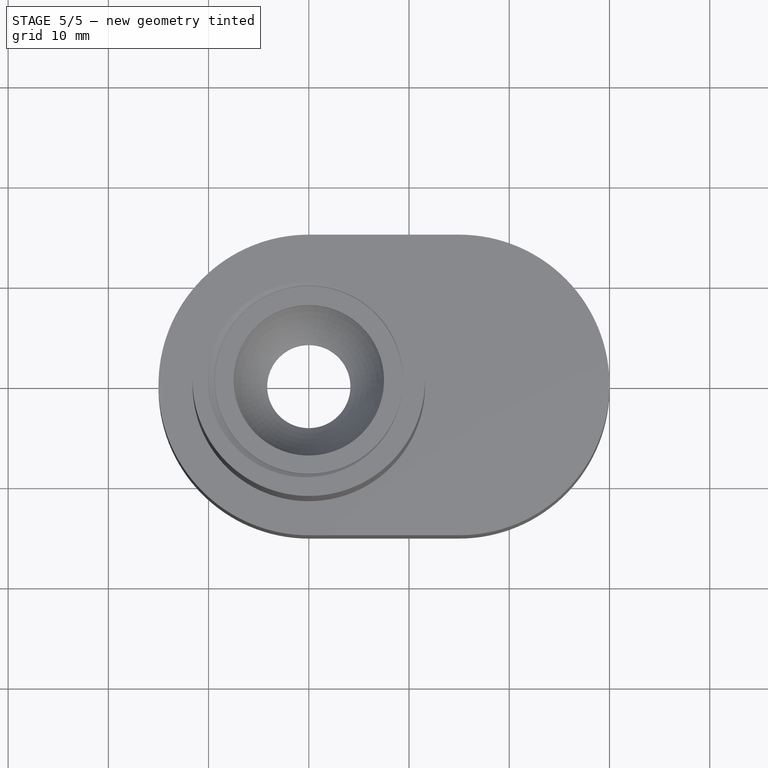
[diagram: stage 5 of 5 — top view after this stage's code; geometry added in this stage tinted green]
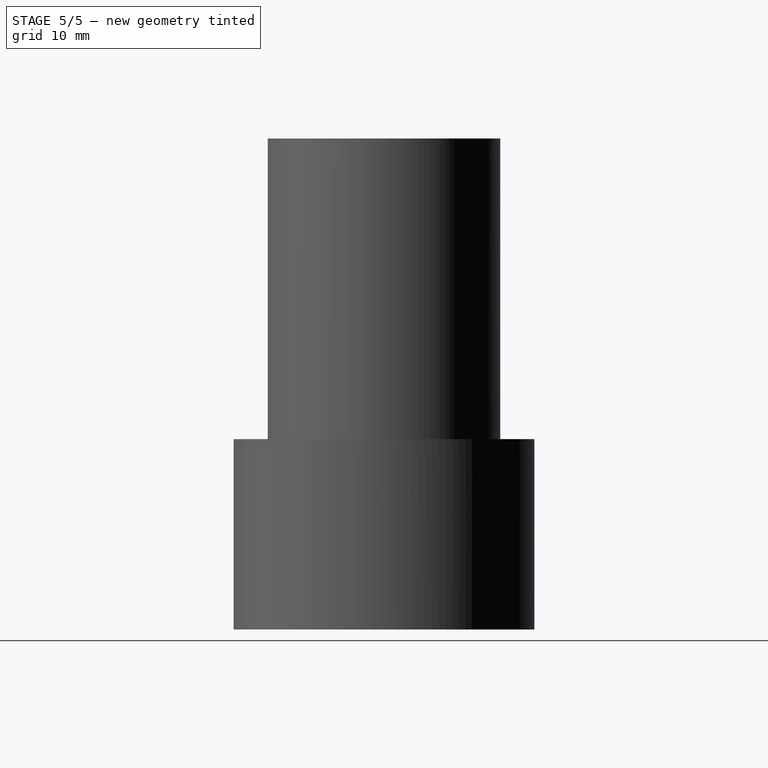
[diagram: stage 5 of 5 — right view after this stage's code; geometry added in this stage tinted green]
FEATURE [Sketcher::SketchObject] Sketch003
  ArcFitTolerance = 1e-06
  AttachmentSupport = -> [XZ_Plane002]
  FullyConstrained = true
  MakeInternals = false
  MapMode = 5
  Placement = pos=(0,0,0) rot=(1,0,0;1.5708rad)
  expr: Constraints[14] = 180 - 30
  sketch-geometry (7):
    g0: LineSegment StartX=10 StartY=3.2 StartZ=0 EndX=10 EndY=0 EndZ=0
    g1: LineSegment StartX=10 StartY=0 StartZ=0 EndX=8.25 EndY=0 EndZ=0
    g2: LineSegment StartX=8.25 StartY=0 StartZ=0 EndX=8.25 EndY=0.8 EndZ=0
    g3: LineSegment StartX=8.25 StartY=0.8 StartZ=0 EndX=7.5 EndY=1.23301 EndZ=0
    g4: LineSegment StartX=7.5 StartY=1.23301 StartZ=0 EndX=7.5 EndY=2.33397 EndZ=0
    g5: LineSegment StartX=7.5 StartY=2.33397 StartZ=0 EndX=8 EndY=3.2 EndZ=0
    g6: LineSegment StartX=8 StartY=3.2 StartZ=0 EndX=10 EndY=3.2 EndZ=0
  constraints (21):
    c: Vertical(g0)
    c: Coincident(g0,g1)
    c: Horizontal(g1)
    c: Coincident(g1,g2)
    c: Vertical(g2)
    c: Coincident(g2,g3)
    c: Coincident(g3,g4)
    c: Vertical(g4)
    c: Coincident(g4,g5)
    c: Coincident(g5,g6)
    c: Horizontal(g6)
    c: Coincident(g0,g6)
    c: DistanceX(g3,g2) = 0.75
    c: DistanceX(g3) = 7.5
    c: Angle(g3) = 2.61799
    c: DistanceY(g2,g2) = 0.8
    c: DistanceY(g0,g0) = 3.2
    c: Angle(g5) = 1.0472
    c: DistanceX(g0) = 10
    c: DistanceX(g4,g5) = 0.5
    c: PointOnObject(g1,g-1)
FEATURE [Sketcher::SketchObject] Sketch004
  ArcFitTolerance = 1e-06
  AttachmentSupport = -> [XZ_Plane002]
  FullyConstrained = true
  MakeInternals = false
  MapMode = 5
  Placement = pos=(0,0,0) rot=(1,0,0;1.5708rad)
  sketch-geometry (10):
    g0: LineSegment StartX=9.95 StartY=-0.913397 StartZ=0 EndX=9.38397 EndY=-0.586603 EndZ=0
    g1: ArcOfCircle CenterX=9.43397 CenterY=-0.5 CenterZ=0 NormalX=0 NormalY=0 NormalZ=1 AngleXU=0 Radius=0.1 StartAngle=2.0944 EndAngle=4.18879
    g2: LineSegment StartX=9.38397 StartY=-0.413397 StartZ=0 EndX=9.95 EndY=-0.0866025 EndZ=0
    g3: ArcOfCircle CenterX=9.9 CenterY=0 CenterZ=0 NormalX=0 NormalY=0 NormalZ=1 AngleXU=0 Radius=0.1 StartAngle=5.23599 EndAngle=6.28319
    g4: ArcOfCircle CenterX=9.9 CenterY=-1 CenterZ=0 NormalX=0 NormalY=0 NormalZ=1 AngleXU=0 Radius=0.1 StartAngle=8.5e-15 EndAngle=1.0472
    g5: GeomPoint X=9.33397 Y=-0.5 Z=0
    g6: LineSegment StartX=10.1 StartY=-1 StartZ=0 EndX=10.1 EndY=0 EndZ=0
    g7: GeomPoint X=9.33397 Y=-0.5 Z=0
    g8: LineSegment StartX=10 StartY=0 StartZ=0 EndX=10.1 EndY=0 EndZ=0
    g9: LineSegment StartX=10.1 StartY=-1 StartZ=0 EndX=10 EndY=-1 EndZ=0
  constraints (28):
    c: Tangent(g0,g1) = 1.5708
    c: Tangent(g1,g2) = 1.5708
    c: Radius(g1) = 0.1
    c: Equal(g0,g2)
    c: Equal(g4,g3)
    c: Equal(g3,g1)
    c: PointOnObject(g5,g1)
    c: Horizontal(g5,g1)
    c: Vertical(g6)
    c: PointOnObject(g7,g1)
    c: Horizontal(g7,g1)
    c: Horizontal(g8)
    c: Coincident(g6,g9)
    c: Coincident(g6,g8)
    c: Tangent(g0,g4) = -1.5708
    c: Tangent(g2,g3) = -1.5708
    c: Equal(g9,g8)
    c: Angle(g0,g2) = 1.0472
    c: Coincident(g4,g9)
    c: Horizontal(g9)
    c: Coincident(g3,g8)
    c: Perpendicular(g3,g8)
    c: Perpendicular(g4,g9)
    c: DistanceY(g6,g6) = 1
    c: DistanceX(g9,g9) = 0.1
    c: PointOnObject(g3,g-1)
    c: DistanceX(g4) = 10
    c: DistanceX(g5) = 9.33397
FEATURE [PartDesign::Revolution] Revolution001
  Angle = 360
  Angle2 = 60
  Axis = (1e-16,1e-16,1)
  Base = (0,0,0)
  Placement = pos=(0,0,0) rot=(1,0,0;1.5708rad)
  Profile = -> Sketch003
  ReferenceAxis = -> Z_Axis002
  Refine = true
  Reversed = true
  Suppressed = false
  Type = 0
FEATURE [PartDesign::SubtractiveHelix] SubtractiveHelix
  Angle = 0
  Axis = (0,2e-16,1)
  Base = (0,0,0)
  BaseFeature = -> Revolution001
  Growth = 0
  HasBeenEdited = true
  Height = 4.15695
  LeftHanded = false
  Mode = 0
  Outside = false
  Pitch = 1
  Placement = pos=(0,0,0) rot=(1,0,0;1.5708rad)
  Profile = -> Sketch004
  ReferenceAxis = -> Sketch004 [V_Axis]
  Refine = true
  Suppressed = false
  Tolerance = 0.1
  Turns = 4.15695
FEATURE [Sketcher::SketchObject] Sketch007
  ArcFitTolerance = 1e-06
  AttachmentSupport = -> [XZ_Plane002]
  FullyConstrained = true
  MakeInternals = false
  MapMode = 5
  Placement = pos=(0,0,0) rot=(1,0,0;1.5708rad)
  sketch-geometry (4):
    g0: LineSegment StartX=-9 StartY=3.5 StartZ=0 EndX=-9 EndY=1.5 EndZ=0
    g1: LineSegment StartX=-9 StartY=1.5 StartZ=0 EndX=9 EndY=1.5 EndZ=0
    g2: LineSegment StartX=9 StartY=1.5 StartZ=0 EndX=9 EndY=3.5 EndZ=0
    g3: LineSegment StartX=9 StartY=3.5 StartZ=0 EndX=-9 EndY=3.5 EndZ=0
  constraints (11):
    c: Coincident(g0,g1)
    c: Coincident(g1,g2)
    c: Coincident(g2,g3)
    c: Coincident(g3,g0)
    c: Vertical(g0)
    c: Vertical(g2)
    c: Horizontal(g3)
    c: Symmetric(g1,g0,g-2)
    c: DistanceX(g3,g3) = 18
    c: DistanceY(g1) = 1.5
    c: DistanceY(g2,g2) = 2
FEATURE [PartDesign::Pocket] Pocket002
  BaseFeature = -> SubtractiveHelix
  Direction = (0,1,-2e-16)
  Length = 0.5
  Length2 = 5
  Midplane = true
  Placement = pos=(0,0,0) rot=(1,0,0;1.5708rad)
  Profile = -> Sketch007
  ReferenceAxis = -> Sketch007 [N_Axis]
  Refine = true
  Suppressed = false
  Type = 0
FEATURE [PartDesign::Pocket] Pocket005
  BaseFeature = -> Pocket004
  Direction = (-1,0,0)
  Length = 5
  Length2 = 5
  Profile = -> Sketch015
  ReferenceAxis = -> Sketch015 [N_Axis]
  Refine = true
  Reversed = true
  Suppressed = false
  Type = 1
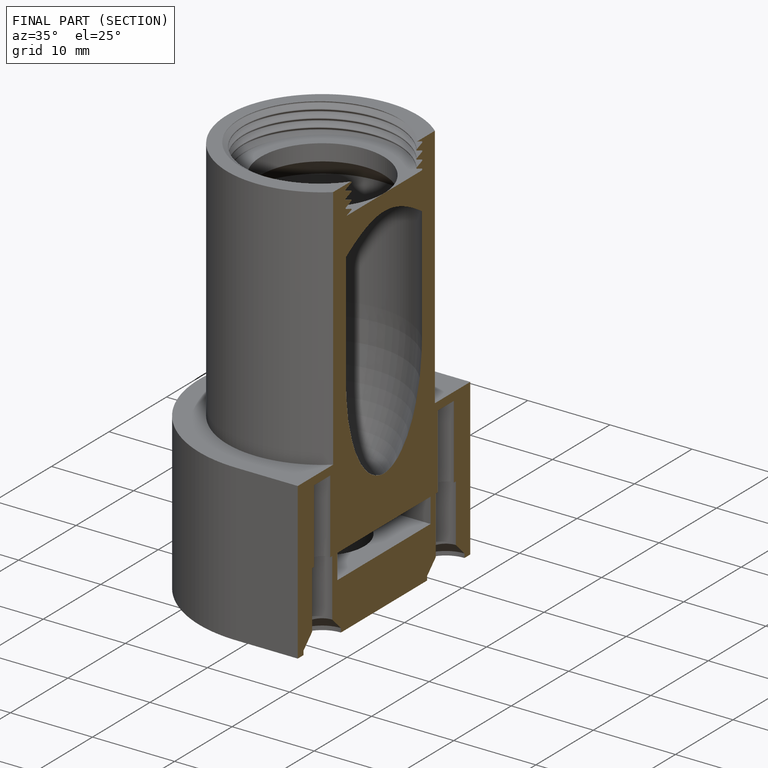
[diagram: finished part — half-section view (interior)]
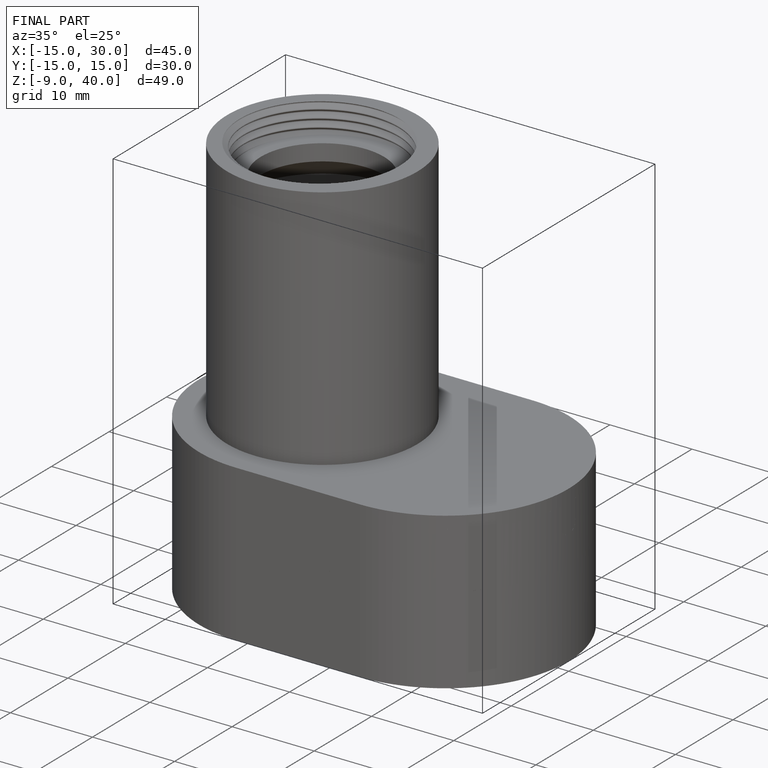
[diagram: finished part — iso view with bounding-box wireframe]
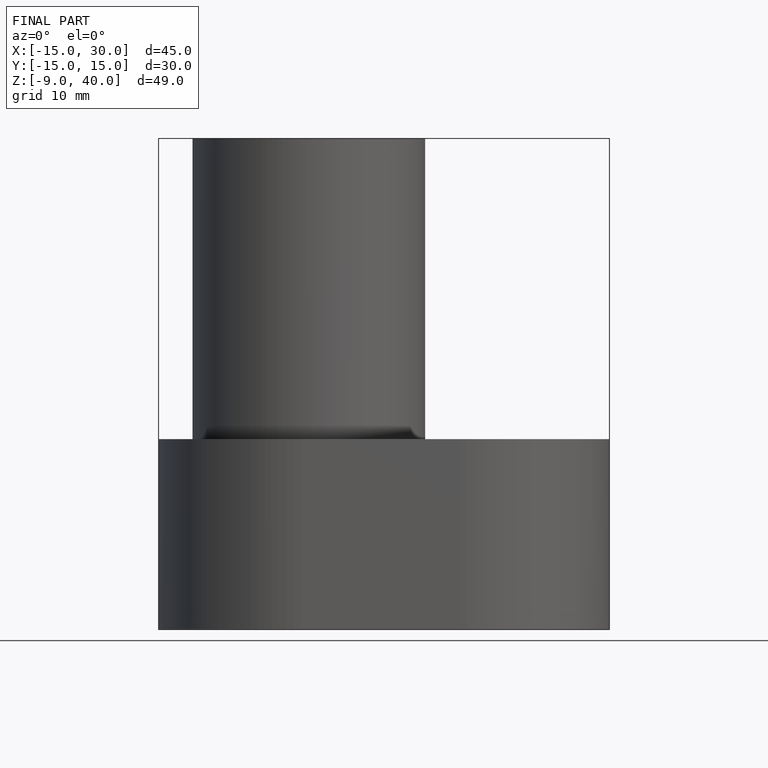
[diagram: finished part — front view with bounding-box wireframe]
